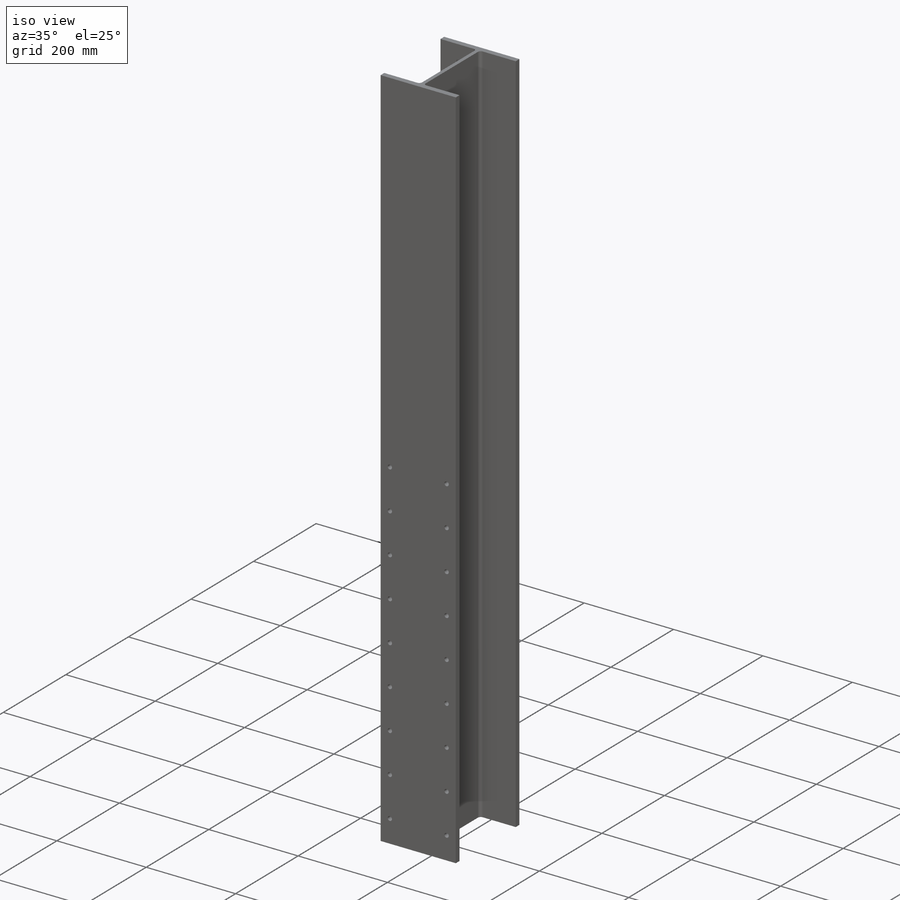
[diagram: iso view]
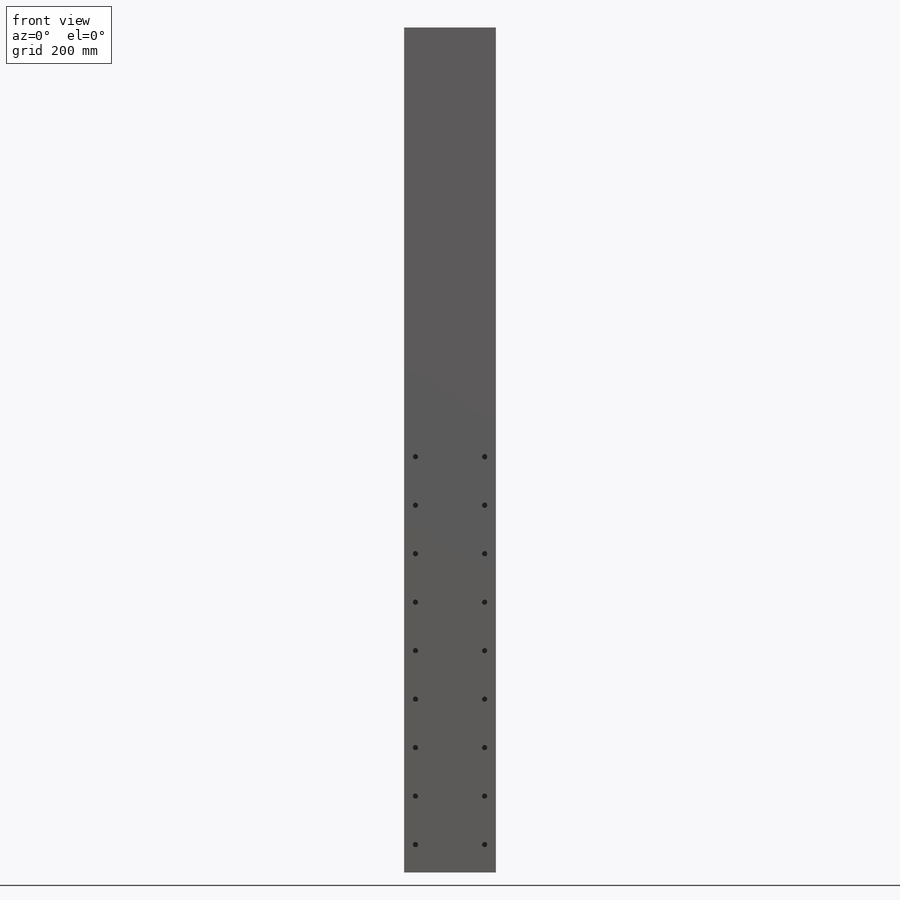
[diagram: front view]
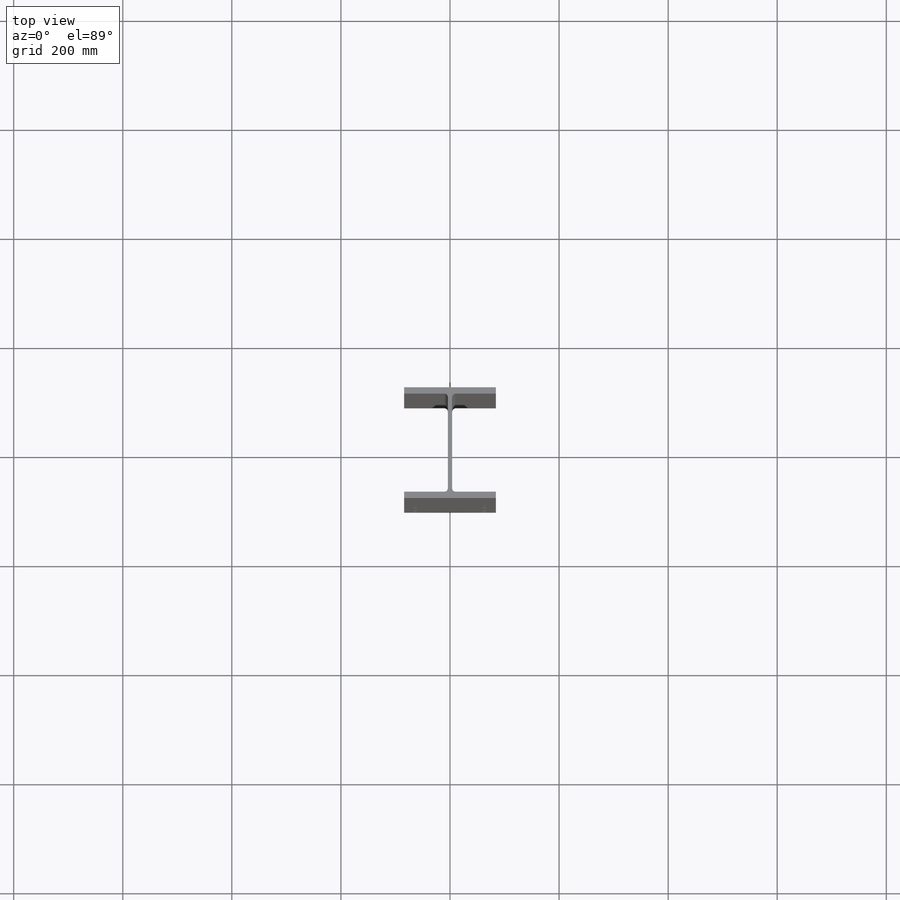
[diagram: top view]
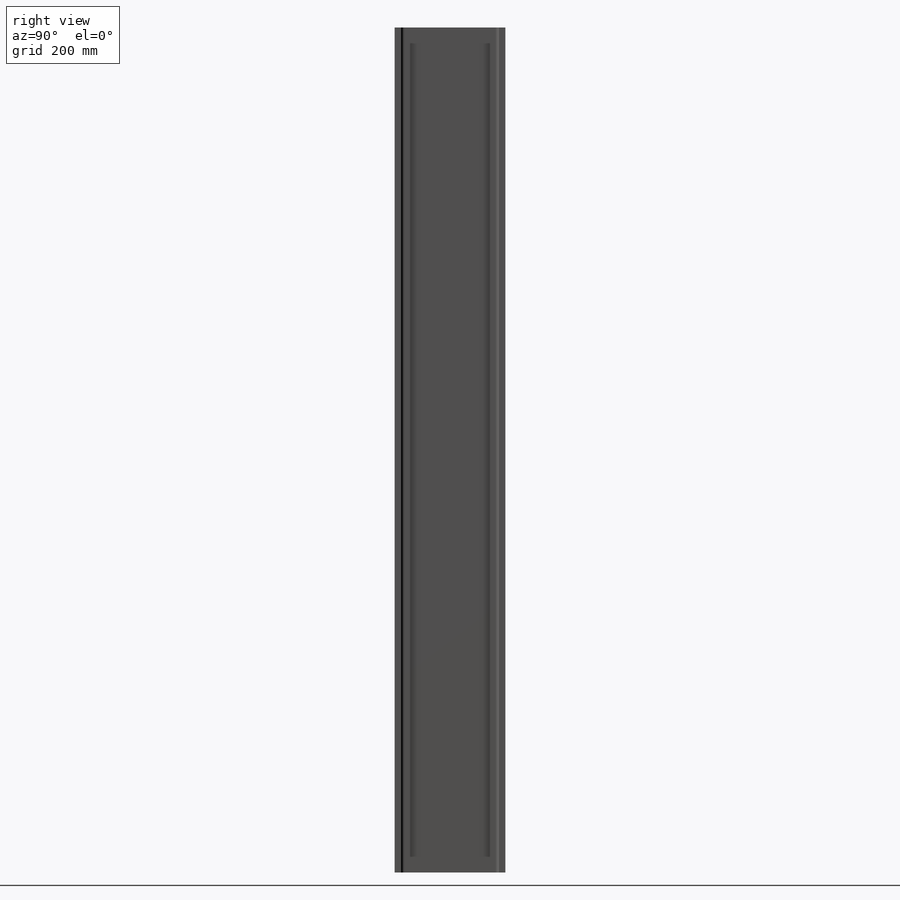
[diagram: right view]
SOLIDWORKS PART (.sldprt)
format: sldprt  version: not decoded by parser v0  size: 229,376 bytes
history: native  units: mm
features: sketch x4, material x1, extrude x1, hole x1 (+12 scaffold rows collapsed)
feature tree (19):
  scaffold x12  (default folders/planes/origin — collapsed)
  material  "Material <not specified>"
  sketch  "Sketch1"  dims[c1.D5=6.35mm c1.D1=168.275mm c1.D2=203.2mm c2.D1=168.275mm c2.D2=203.2mm c2.D3=11.684mm c2.D4=7.9375mm]
  extrude  "Boss-Extrude1"  Depth=1330.325mm
  sketch  "Sketch2"
  hole  "3/8 (0.375) Diameter Hole1"  Diameter=9.525mm Depth=11.684mm
  sketch  "Sketch4"  dims[c1.D1=127.0mm c1.D2=88.9mm c1.D3=88.9mm c1.D4=88.9mm c1.D5=88.9mm c1.D6=88.9mm c1.D7=88.9mm c1.D8=88.9mm c1.D9=209.55mm c2.D2=88.9mm c2.D3=88.9mm c2.D4=88.9mm c2.D5=88.9mm c2.D6=88.9mm c2.D7=88.9mm c2.D8=88.9mm c2.D10=88.9mm]
  sketch  "Sketch3"  dims[hole-wizard template sketch: 60 standard entries collapsed; hole parameters kept: c18.Thru Hole Depth=11.684mm]
decode coverage: 5 of 6 modeling features carry decoded parameters
note: ~ marks probable driven/reference dimensions
note: suppression state not decoded; provenance and decode notes live in map.json
